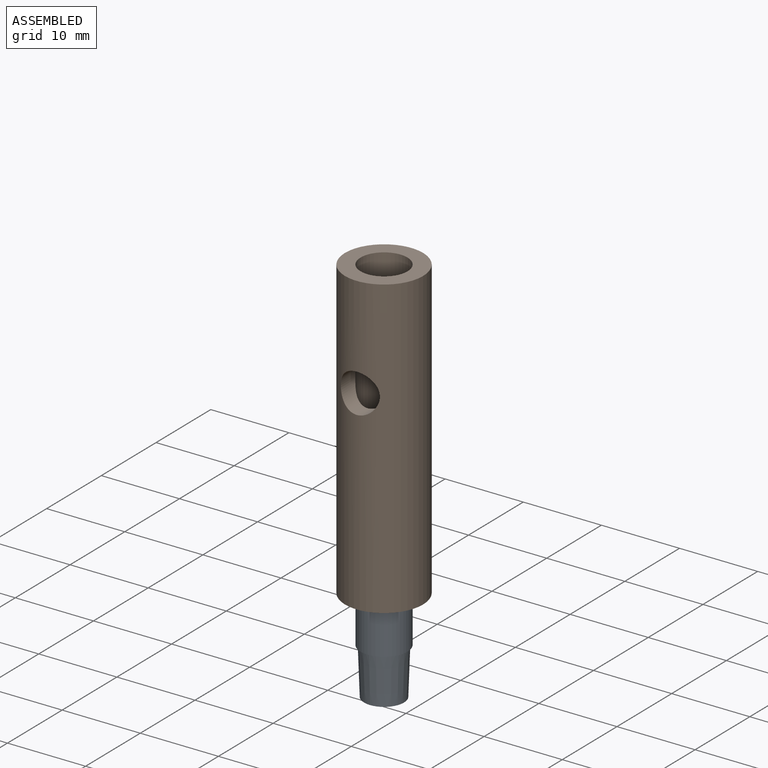
[diagram: assembled view]
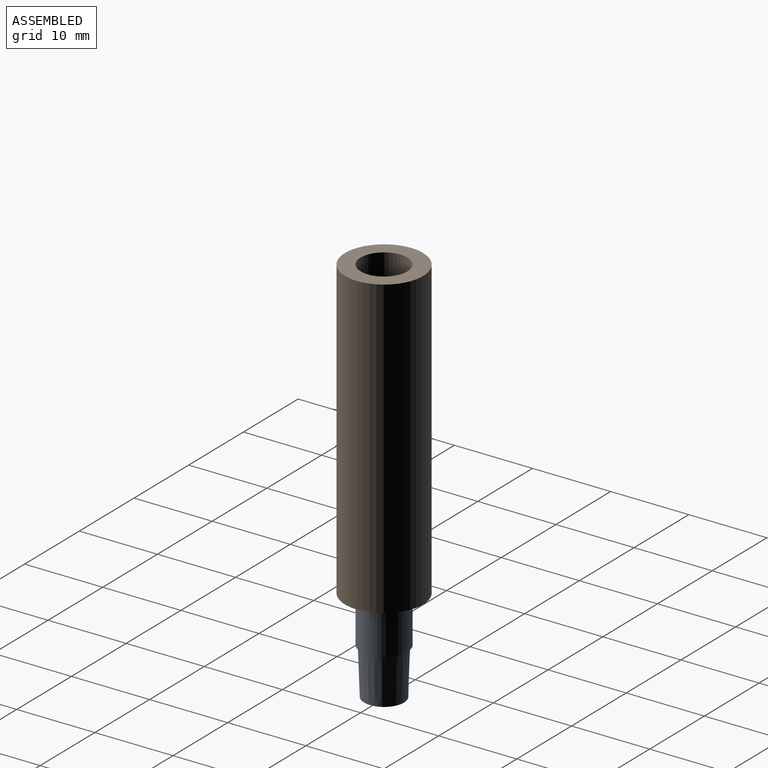
[diagram: assembled view, second angle]
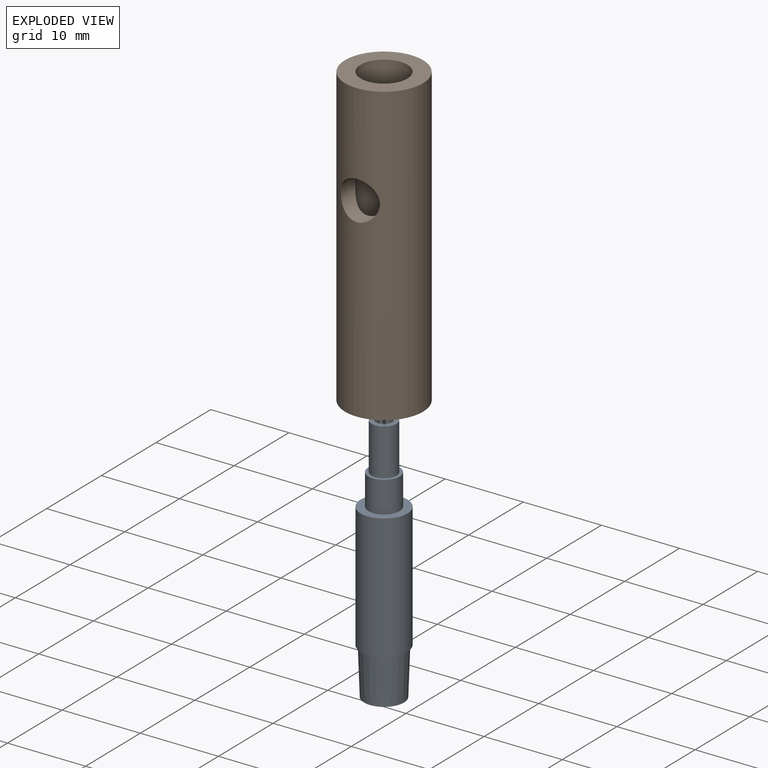
[diagram: exploded view]
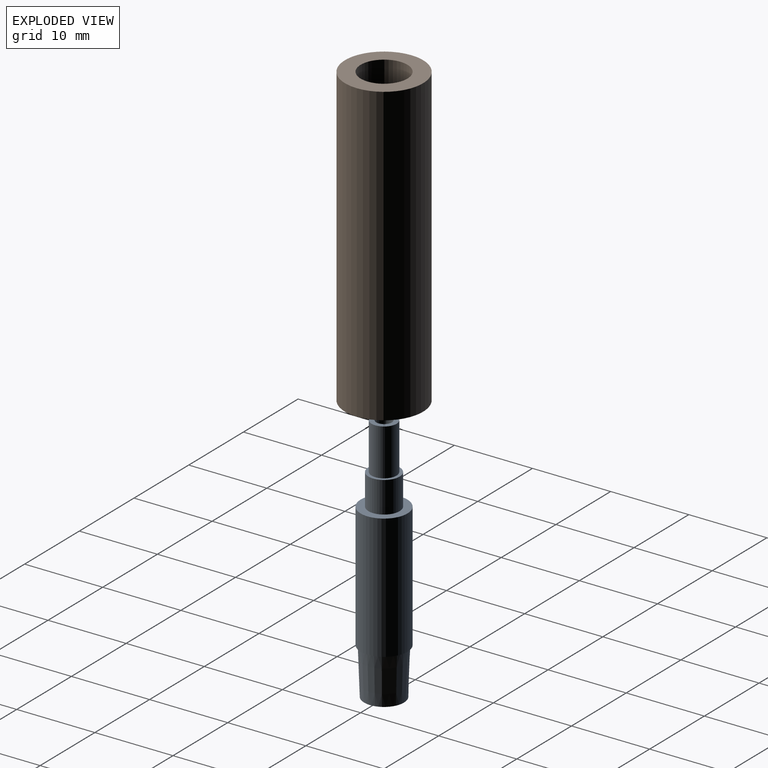
[diagram: exploded view, second angle]
ASSEMBLY  parts=2 mates=2
PART A: 10 faces, bbox 6x32x6 mm
  f0: cylinder r=1mm len=32mm, axis (0,1,0), area 201.1mm2, adj f1,f9
  f1: plane 5.1x5.1mm, normal (0,-1,0), area 17.3mm2, adj f0,f2
  f2: cone r=2.76mm half-angle=2deg, axis (0,1,0), area 100.1mm2, adj f1,f3
  f3: plane 6x6mm, normal (0,-1,0), area 4.4mm2, adj f2,f4
  f4: cylinder r=3mm len=16mm, axis (0,1,0), area 301.6mm2, adj f3,f5
  f5: plane 6x6mm, normal (0,1,0), area 15.7mm2, adj f4,f6
  f6: cylinder r=2mm len=4mm, axis (0,1,0), area 50.3mm2, adj f5,f7
  f7: plane 4x4mm, normal (0,1,0), area 4.5mm2, adj f6,f8
  f8: cylinder r=1.6mm len=6mm, axis (0,1,0), area 60.3mm2, adj f7,f9
  f9: plane 3.2x3.2mm, normal (0,1,0), area 4.9mm2, adj f0,f8
PART B: 9 faces, bbox 10x10x38 mm
  f0: cylinder r=5mm len=38mm, axis (0,0,-1), area 1173.5mm2, adj f4,f5,f8
  f1: cylinder r=3mm len=25mm, axis (0,0,-1), area 449.2mm2, adj f5,f6,f8
  f2: plane 6x6mm, normal (0,0,-1), area 15.7mm2, adj f3,f7
  f3: cylinder r=3mm len=10mm, axis (0,0,-1), area 188.5mm2, adj f2,f4
  f4: plane 10x10mm, normal (0,0,-1), area 50.3mm2, adj f0,f3
  f5: plane 10x10mm, normal (0,0,1), area 50.3mm2, adj f0,f1
  f6: plane 6x6mm, normal (0,0,1), area 15.7mm2, adj f1,f7
  f7: cylinder r=2mm len=4mm, axis (0,0,-1), area 37.7mm2, adj f2,f6
  f8: cylinder r=2.5mm len=5mm, axis (0,1,0), area 36mm2, adj f0,f1
PLACE A rot(axis=(1,0,0),90deg) t=(-43.3,-29.29,-10.93)mm
PLACE B t=(-43.3,-29.29,5.07)mm
MATE cylindrical A.f0 <-> B.f0  axis (0,0,1) through (-43.3,-29.29,-2.93)mm
MATE fastened A.f0 <-> B.f0  axis (0,0,1) through (-43.3,-29.29,5.07)mm
